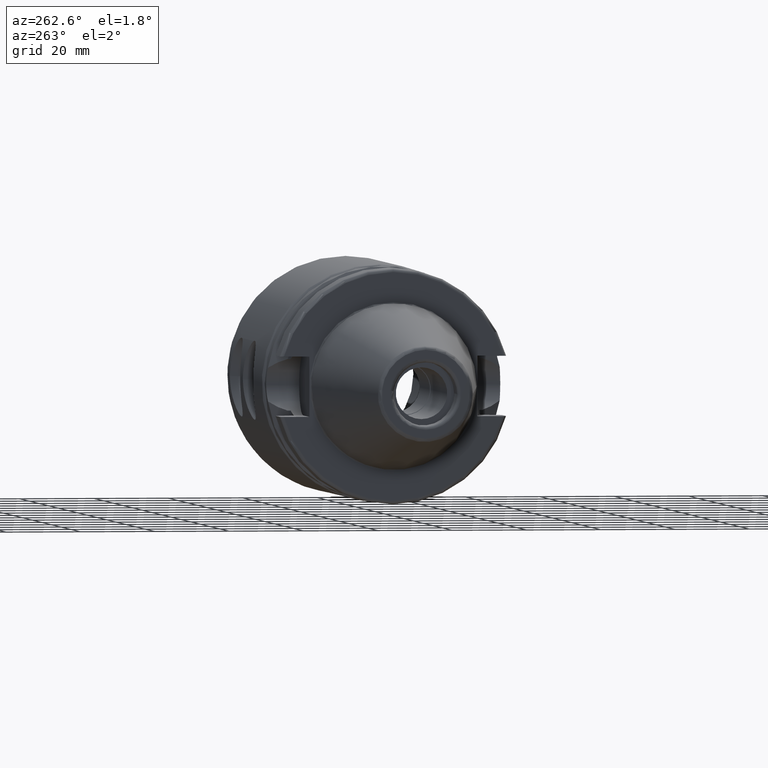
[diagram: clean part render]
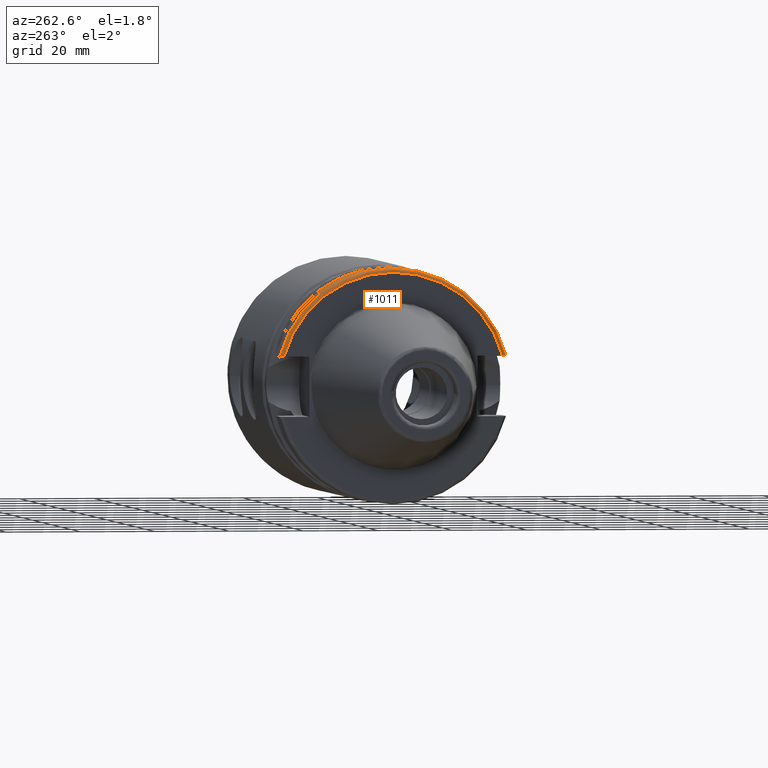
[diagram: same view with one face highlighted and labeled with its STEP entity id]
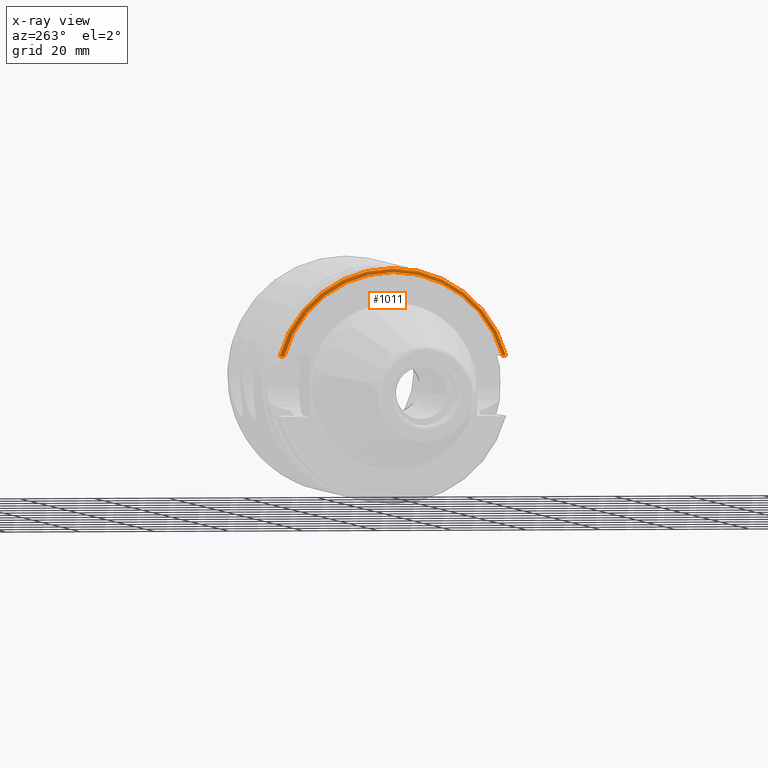
[diagram: x-ray of the same camera — body ghosted, the highlighted face saturated]
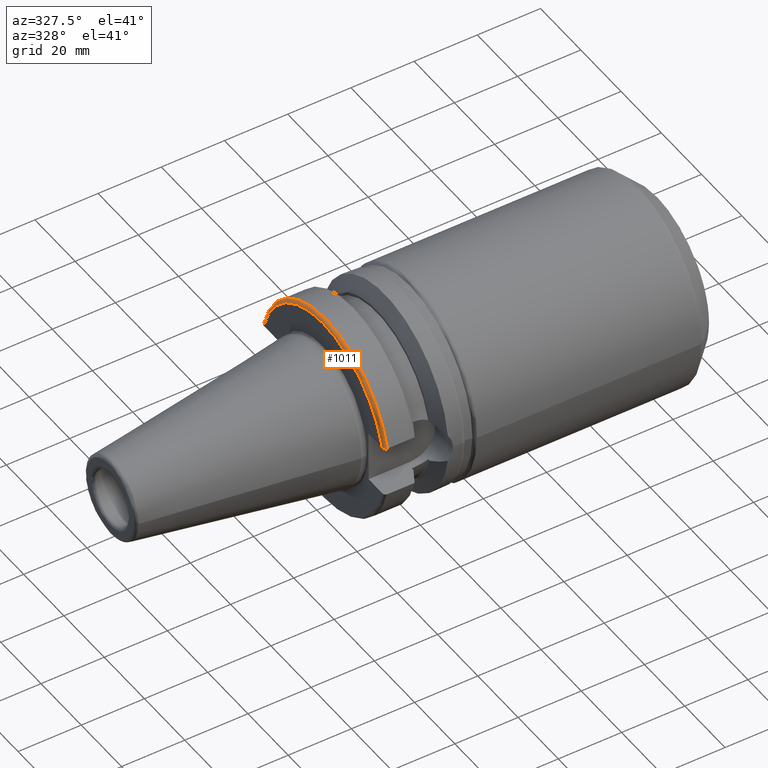
[diagram: same view with one face highlighted and labeled with its STEP entity id]
A machine part, auxiliary view. The second image highlights one B-rep face of the part: STEP entity #1011.
The next image is the same camera in x-ray: the body ghosted, the highlighted face saturated — about 0% of this face is hidden behind the body in this view.
A second angle (auxiliary view) of the same face is appended — the face is thin or edge-on in the first view.
In plain terms, the highlighted toroidal blend (fillet) surface has major radius 30.5 mm and minor (blend) radius 1 mm.
Its self-contained STEP definition (entity closure, byte-faithful):
#54=B_SPLINE_CURVE_WITH_KNOTS('',3,(#2194,#2195,#2196,#2197,#2198,#2199,
#2200,#2201,#2202,#2203),.UNSPECIFIED.,.F.,.F.,(4,2,2,2,4),(-0.150751871388631,
-0.111946181815504,-0.0738743445372396,-0.0366169489027566,0.),
 .UNSPECIFIED.);
#61=B_SPLINE_CURVE_WITH_KNOTS('',3,(#2315,#2316,#2317,#2318,#2319,#2320,
#2321,#2322,#2323,#2324),.UNSPECIFIED.,.F.,.F.,(4,2,2,2,4),(0.,0.0366169489027566,
0.0738743445372396,0.111946181815504,0.150751871388631),.UNSPECIFIED.);
#254=FACE_OUTER_BOUND('',#319,.T.);
#319=EDGE_LOOP('',(#880,#881,#882,#883));
#382=CIRCLE('',#1133,31.5);
#383=CIRCLE('',#1134,30.5);
#462=VERTEX_POINT('',#2191);
#463=VERTEX_POINT('',#2193);
#486=VERTEX_POINT('',#2312);
#487=VERTEX_POINT('',#2314);
#585=EDGE_CURVE('',#463,#462,#54,.T.);
#620=EDGE_CURVE('',#487,#486,#61,.T.);
#628=EDGE_CURVE('',#487,#462,#382,.T.);
#629=EDGE_CURVE('',#486,#463,#383,.T.);
#880=ORIENTED_EDGE('',*,*,#585,.T.);
#881=ORIENTED_EDGE('',*,*,#628,.F.);
#882=ORIENTED_EDGE('',*,*,#620,.T.);
#883=ORIENTED_EDGE('',*,*,#629,.T.);
#967=TOROIDAL_SURFACE('',#1132,30.5,1.00000000000001);
#1011=ADVANCED_FACE('',(#254),#967,.T.);
#1132=AXIS2_PLACEMENT_3D('',#2340,#1383,#1384);
#1133=AXIS2_PLACEMENT_3D('',#2341,#1385,#1386);
#1134=AXIS2_PLACEMENT_3D('',#2342,#1387,#1388);
#1383=DIRECTION('center_axis',(1.,0.,0.));
#1384=DIRECTION('ref_axis',(0.,-1.22464679914735E-16,1.));
#1385=DIRECTION('center_axis',(1.,0.,0.));
#1386=DIRECTION('ref_axis',(0.,0.,-1.));
#1387=DIRECTION('center_axis',(1.,0.,0.));
#1388=DIRECTION('ref_axis',(0.,0.,-1.));
#2191=CARTESIAN_POINT('',(2.99999999999999,-30.4540227227866,8.05));
#2193=CARTESIAN_POINT('',(1.99999999999999,-29.4184890842477,8.05));
#2194=CARTESIAN_POINT('Ctrl Pts',(1.99999999999999,-29.4184890842477,8.05));
#2195=CARTESIAN_POINT('Ctrl Pts',(1.99999999999999,-29.5478413828248,8.05));
#2196=CARTESIAN_POINT('Ctrl Pts',(2.02950258743517,-29.7002346307938,8.05));
#2197=CARTESIAN_POINT('Ctrl Pts',(2.12587454939785,-29.9376810968085,8.05));
#2198=CARTESIAN_POINT('Ctrl Pts',(2.2089547883793,-30.0653098968133,8.05));
#2199=CARTESIAN_POINT('Ctrl Pts',(2.38465986426588,-30.2446912007727,8.05));
#2200=CARTESIAN_POINT('Ctrl Pts',(2.50758665841081,-30.3289456947341,8.05));
#2201=CARTESIAN_POINT('Ctrl Pts',(2.73442803339431,-30.4247631098996,8.05));
#2202=CARTESIAN_POINT('Ctrl Pts',(2.87794350365748,-30.4540227227866,8.05));
#2203=CARTESIAN_POINT('Ctrl Pts',(3.,-30.4540227227866,8.05));
#2312=CARTESIAN_POINT('',(1.99999999999999,29.4184890842477,8.05));
#2314=CARTESIAN_POINT('',(2.99999999999999,30.4540227227866,8.05));
#2315=CARTESIAN_POINT('Ctrl Pts',(3.,30.4540227227866,8.05));
#2316=CARTESIAN_POINT('Ctrl Pts',(2.87794350365748,30.4540227227866,8.05));
#2317=CARTESIAN_POINT('Ctrl Pts',(2.73442803339431,30.4247631098996,8.05));
#2318=CARTESIAN_POINT('Ctrl Pts',(2.50758665841081,30.3289456947341,8.05));
#2319=CARTESIAN_POINT('Ctrl Pts',(2.38465986426588,30.2446912007727,8.05));
#2320=CARTESIAN_POINT('Ctrl Pts',(2.2089547883793,30.0653098968133,8.05));
#2321=CARTESIAN_POINT('Ctrl Pts',(2.12587454939785,29.9376810968085,8.05));
#2322=CARTESIAN_POINT('Ctrl Pts',(2.02950258743517,29.7002346307938,8.05));
#2323=CARTESIAN_POINT('Ctrl Pts',(1.99999999999999,29.5478413828248,8.05));
#2324=CARTESIAN_POINT('Ctrl Pts',(1.99999999999999,29.4184890842477,8.05));
#2340=CARTESIAN_POINT('Origin',(3.,0.,0.));
#2341=CARTESIAN_POINT('Origin',(2.99999999999999,0.,0.));
#2342=CARTESIAN_POINT('Origin',(1.99999999999999,0.,0.));